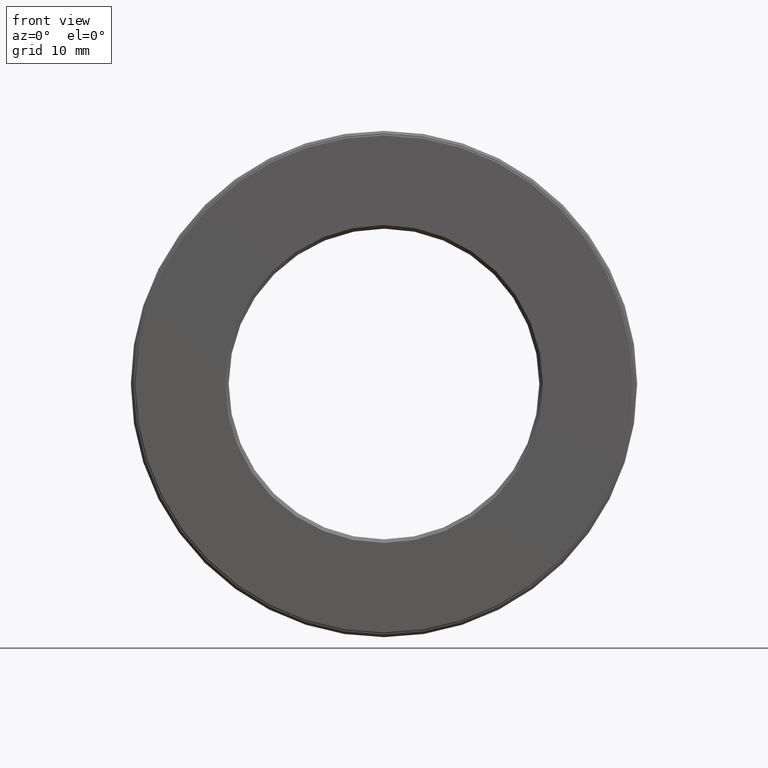
[diagram: clean part render]
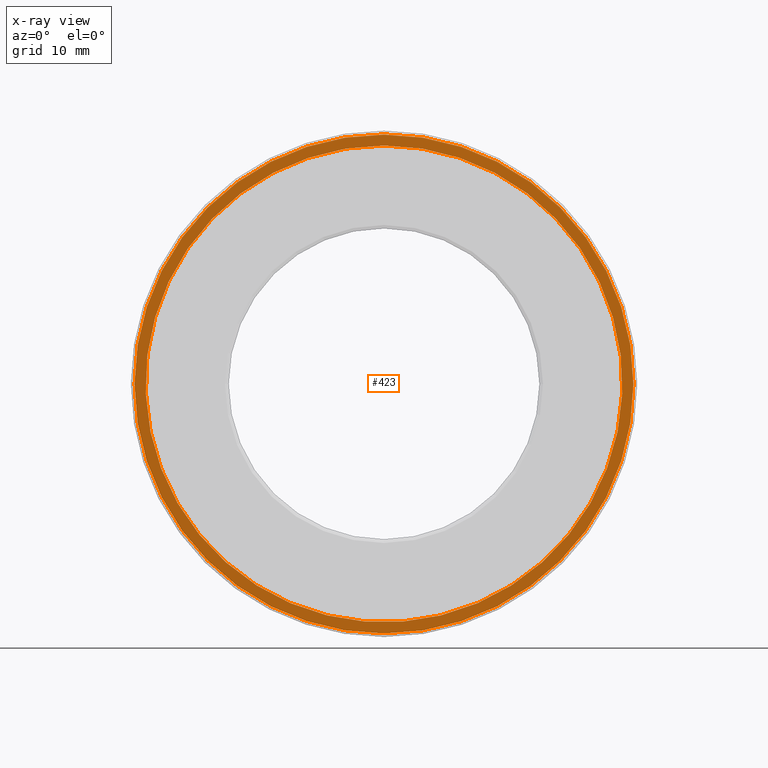
[diagram: x-ray — body ghosted, one internal face saturated and labeled with its STEP entity id]
A machine part, front view, then the same camera in x-ray: the body is ghosted and one INTERNAL B-rep face — a face not visible from any outside direction — is saturated and labeled: STEP entity #423.
In plain terms, the highlighted planar face has unit normal (-0, 1, 0).
Its self-contained STEP definition (entity closure, byte-faithful):
#22 = EDGE_LOOP ( 'NONE', ( #128 ) ) ;
#44 = CARTESIAN_POINT ( 'NONE',  ( 0.0000000000000000000, 0.7774999999999998600, 1.355000000000000000 ) ) ;
#52 = AXIS2_PLACEMENT_3D ( 'NONE', #460, #313, #553 ) ;
#128 = ORIENTED_EDGE ( 'NONE', *, *, #507, .T. ) ;
#130 = FACE_OUTER_BOUND ( 'NONE', #505, .T. ) ;
#155 = AXIS2_PLACEMENT_3D ( 'NONE', #537, #248, #388 ) ;
#170 = VERTEX_POINT ( 'NONE', #44 ) ;
#185 = ORIENTED_EDGE ( 'NONE', *, *, #217, .F. ) ;
#215 = DIRECTION ( 'NONE',  ( -0.0000000000000000000, 1.000000000000000000, 0.0000000000000000000 ) ) ;
#217 = EDGE_CURVE ( 'NONE', #170, #170, #479, .T. ) ;
#248 = DIRECTION ( 'NONE',  ( -0.0000000000000000000, 1.000000000000000000, -0.0000000000000000000 ) ) ;
#267 = DIRECTION ( 'NONE',  ( 0.0000000000000000000, 0.0000000000000000000, 1.000000000000000000 ) ) ;
#273 = PLANE ( 'NONE',  #565 ) ;
#288 = CIRCLE ( 'NONE', #52, 1.294999999999999900 ) ;
#313 = DIRECTION ( 'NONE',  ( -0.0000000000000000000, 1.000000000000000000, -0.0000000000000000000 ) ) ;
#369 = CARTESIAN_POINT ( 'NONE',  ( 0.0000000000000000000, 0.7774999999999998600, 1.294999999999999900 ) ) ;
#388 = DIRECTION ( 'NONE',  ( 0.0000000000000000000, 0.0000000000000000000, 1.000000000000000000 ) ) ;
#404 = CARTESIAN_POINT ( 'NONE',  ( 0.0000000000000000000, 0.7774999999999998600, 0.0000000000000000000 ) ) ;
#412 = VERTEX_POINT ( 'NONE', #369 ) ;
#423 = ADVANCED_FACE ( 'NONE', ( #130, #487 ), #273, .F. ) ;
#460 = CARTESIAN_POINT ( 'NONE',  ( 0.0000000000000000000, 0.7774999999999998600, 0.0000000000000000000 ) ) ;
#479 = CIRCLE ( 'NONE', #155, 1.355000000000000000 ) ;
#487 = FACE_BOUND ( 'NONE', #22, .T. ) ;
#505 = EDGE_LOOP ( 'NONE', ( #185 ) ) ;
#507 = EDGE_CURVE ( 'NONE', #412, #412, #288, .T. ) ;
#537 = CARTESIAN_POINT ( 'NONE',  ( 0.0000000000000000000, 0.7774999999999998600, 0.0000000000000000000 ) ) ;
#553 = DIRECTION ( 'NONE',  ( 0.0000000000000000000, 0.0000000000000000000, 1.000000000000000000 ) ) ;
#565 = AXIS2_PLACEMENT_3D ( 'NONE', #404, #215, #267 ) ;